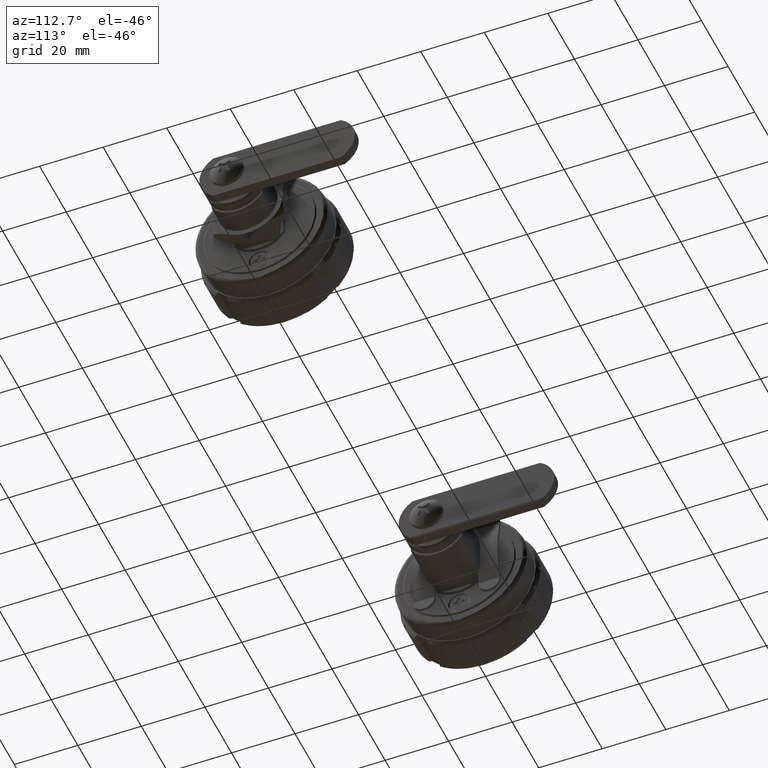
[diagram: clean part render]
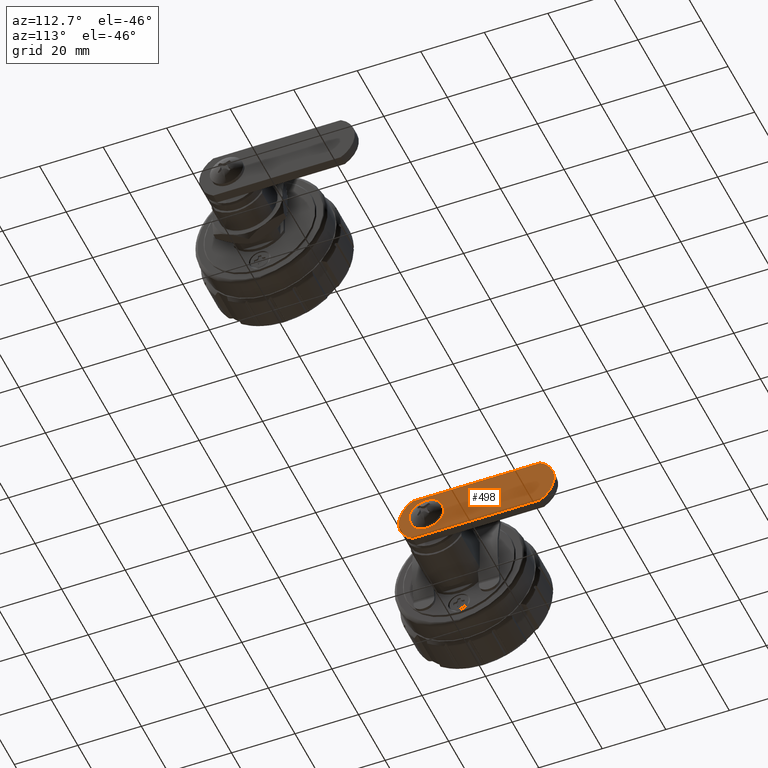
[diagram: same view with one face highlighted and labeled with its STEP entity id]
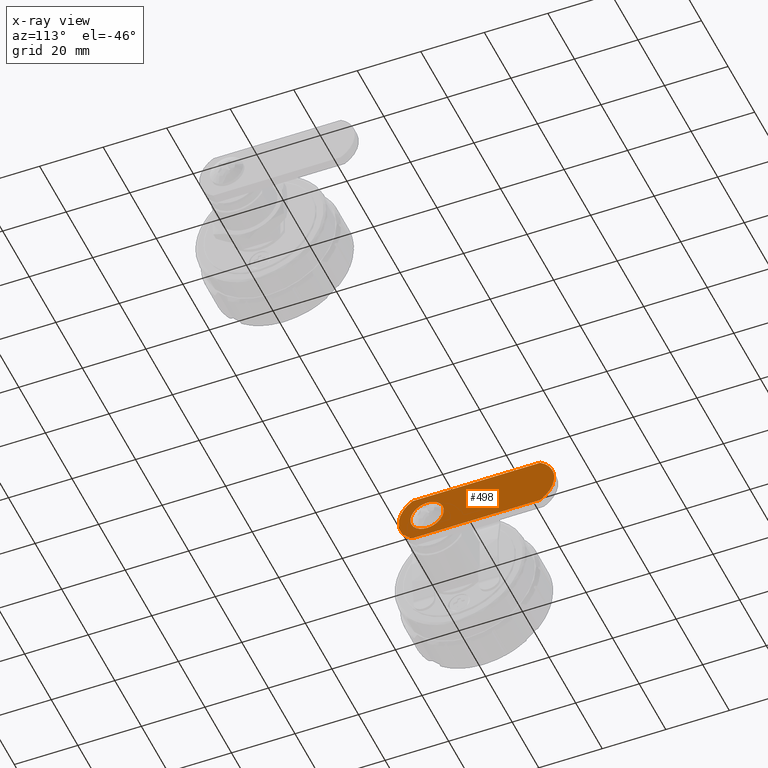
[diagram: x-ray of the same camera — body ghosted, the highlighted face saturated]
A machine part, auxiliary view. The second image highlights one B-rep face of the part: STEP entity #498.
The next image is the same camera in x-ray: the body ghosted, the highlighted face saturated — about 0% of this face is hidden behind the body in this view.
In plain terms, the highlighted planar face has unit normal (1, 0, 0).
Its self-contained STEP definition (entity closure, byte-faithful):
#498=ADVANCED_FACE('',(#3080,#3081),#3079,.T.);
#3079=PLANE('',#5417);
#3080=FACE_OUTER_BOUND('',#5418,.T.);
#3081=FACE_BOUND('',#5419,.T.);
#5414=CARTESIAN_POINT('',(2.40000015795E+01,-2.43424132427E+01,-9.30000000696E+00));
#5415=DIRECTION('',(1.00000000000E+00,0.00000000000E+00,0.00000000000E+00));
#5416=DIRECTION('',(0.00000000000E+00,1.00000000000E+00,0.00000000000E+00));
#5417=AXIS2_PLACEMENT_3D('',#5414,#5415,#5416);
#5418=EDGE_LOOP('',(#7280,#7281,#7282,#7283));
#5419=EDGE_LOOP('',(#7284,#7285));
#7280=ORIENTED_EDGE('',*,*,#8430,.F.);
#7281=ORIENTED_EDGE('',*,*,#8431,.T.);
#7282=ORIENTED_EDGE('',*,*,#8432,.F.);
#7283=ORIENTED_EDGE('',*,*,#8433,.T.);
#7284=ORIENTED_EDGE('',*,*,#8434,.T.);
#7285=ORIENTED_EDGE('',*,*,#8435,.T.);
#8430=EDGE_CURVE('',#13350,#13351,#13352,.T.);
#8431=EDGE_CURVE('',#13350,#13358,#13359,.T.);
#8432=EDGE_CURVE('',#13365,#13358,#13366,.T.);
#8433=EDGE_CURVE('',#13365,#13351,#13372,.T.);
#8434=EDGE_CURVE('',#13378,#13379,#13380,.T.);
#8435=EDGE_CURVE('',#13379,#13378,#13386,.T.);
#13350=VERTEX_POINT('',#18171);
#13351=VERTEX_POINT('',#18172);
#13352=LINE('',#18173,#18174);
#13358=VERTEX_POINT('',#18176);
#13359=CIRCLE('',#18180,9.00000000000E+00);
#13365=VERTEX_POINT('',#18181);
#13366=LINE('',#18182,#18183);
#13372=CIRCLE('',#18188,9.00000000000E+00);
#13378=VERTEX_POINT('',#18189);
#13379=VERTEX_POINT('',#18190);
#13380=CIRCLE('',#18194,5.25000000000E+00);
#13386=CIRCLE('',#18198,5.25000000000E+00);
#18171=CARTESIAN_POINT('',(2.40000015795E+01,-4.57575130443E+00,7.75000000000E+00));
#18172=CARTESIAN_POINT('',(2.40000015795E+01,3.55757513044E+01,7.75000000000E+00));
#18173=CARTESIAN_POINT('',(2.40000015795E+01,-4.57575130443E+00,7.74999987333E+00));
#18174=VECTOR('',#18175,4.01515026089E+01);
#18175=DIRECTION('',(0.00000000000E+00,1.00000000000E+00,3.15483537874E-09));
#18176=CARTESIAN_POINT('',(2.40000015795E+01,-4.57575121520E+00,-7.74999987335E+00));
#18177=CARTESIAN_POINT('',(2.40000015795E+01,1.13686837722E-13,-2.84217094304E-13));
#18178=DIRECTION('',(1.00000000000E+00,0.00000000000E+00,0.00000000000E+00));
#18179=DIRECTION('',(-0.00000000000E+00,-0.00000000000E+00,1.00000000000E+00));
#18180=AXIS2_PLACEMENT_3D('',#18177,#18178,#18179);
#18181=CARTESIAN_POINT('',(2.40000015795E+01,3.55757513044E+01,-7.75000000000E+00));
#18182=CARTESIAN_POINT('',(2.40000015795E+01,3.55757513044E+01,-7.75000000000E+00));
#18183=VECTOR('',#18184,4.01515025196E+01);
#18184=DIRECTION('',(0.00000000000E+00,-1.00000000000E+00,3.15427619716E-09));
#18185=CARTESIAN_POINT('',(2.40000015795E+01,3.10000000000E+01,-2.84217094304E-13));
#18186=DIRECTION('',(1.00000000000E+00,0.00000000000E+00,0.00000000000E+00));
#18187=DIRECTION('',(-0.00000000000E+00,-0.00000000000E+00,1.00000000000E+00));
#18188=AXIS2_PLACEMENT_3D('',#18185,#18186,#18187);
#18189=CARTESIAN_POINT('',(2.40000015795E+01,0.00000000000E+00,5.25000000000E+00));
#18190=CARTESIAN_POINT('',(2.40000015795E+01,2.96059473233E-16,-5.25000000000E+00));
#18191=CARTESIAN_POINT('',(2.40000015795E+01,0.00000000000E+00,0.00000000000E+00));
#18192=DIRECTION('',(-1.00000000000E+00,0.00000000000E+00,0.00000000000E+00));
#18193=DIRECTION('',(0.00000000000E+00,-1.22460635382E-16,1.00000000000E+00));
#18194=AXIS2_PLACEMENT_3D('',#18191,#18192,#18193);
#18195=CARTESIAN_POINT('',(2.40000015795E+01,0.00000000000E+00,0.00000000000E+00));
#18196=DIRECTION('',(-1.00000000000E+00,0.00000000000E+00,0.00000000000E+00));
#18197=DIRECTION('',(0.00000000000E+00,-1.22460635382E-16,1.00000000000E+00));
#18198=AXIS2_PLACEMENT_3D('',#18195,#18196,#18197);